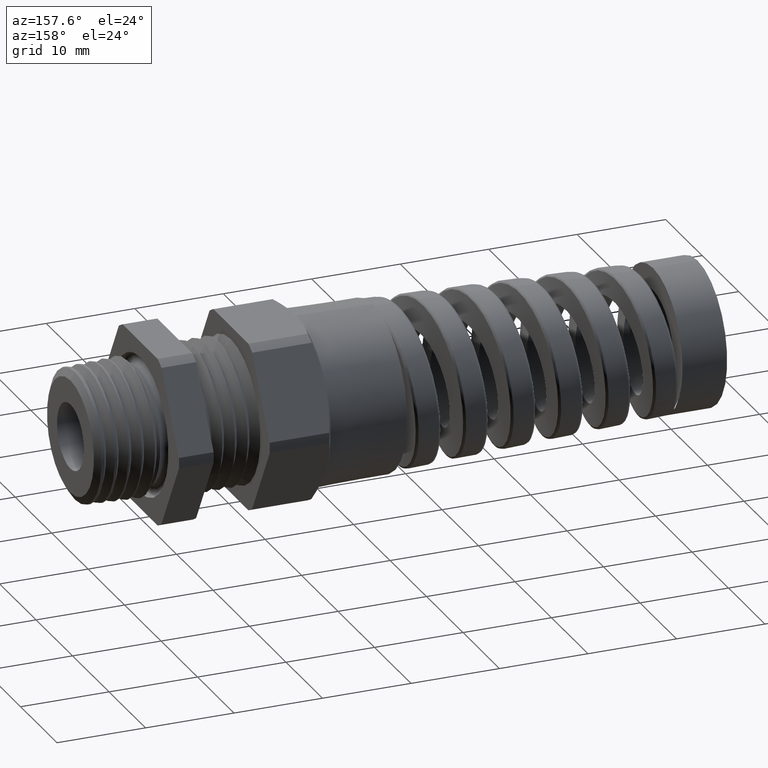
[diagram: clean part render]
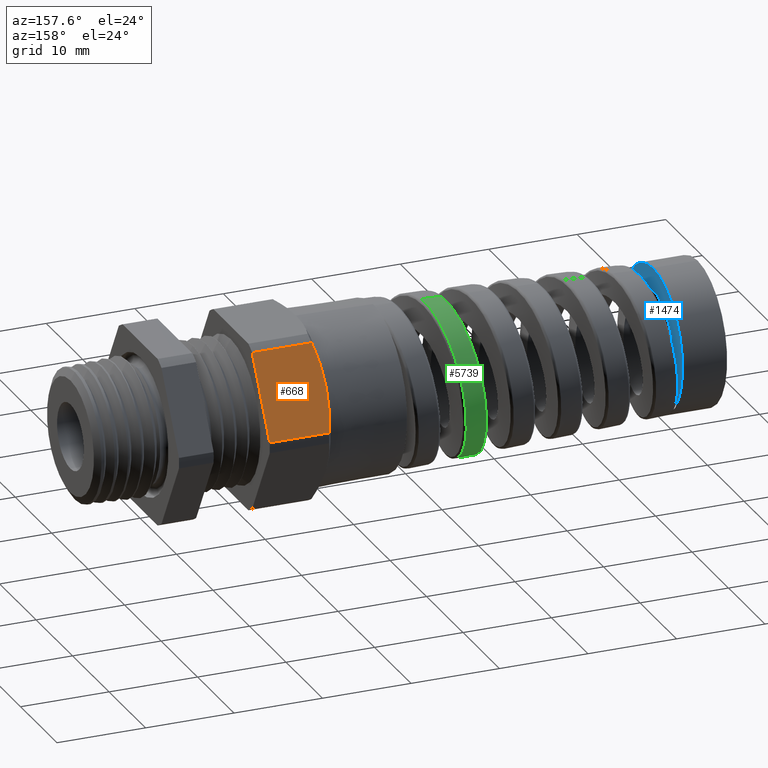
[diagram: same view with three faces highlighted in distinct colors, each labeled with its STEP entity id]
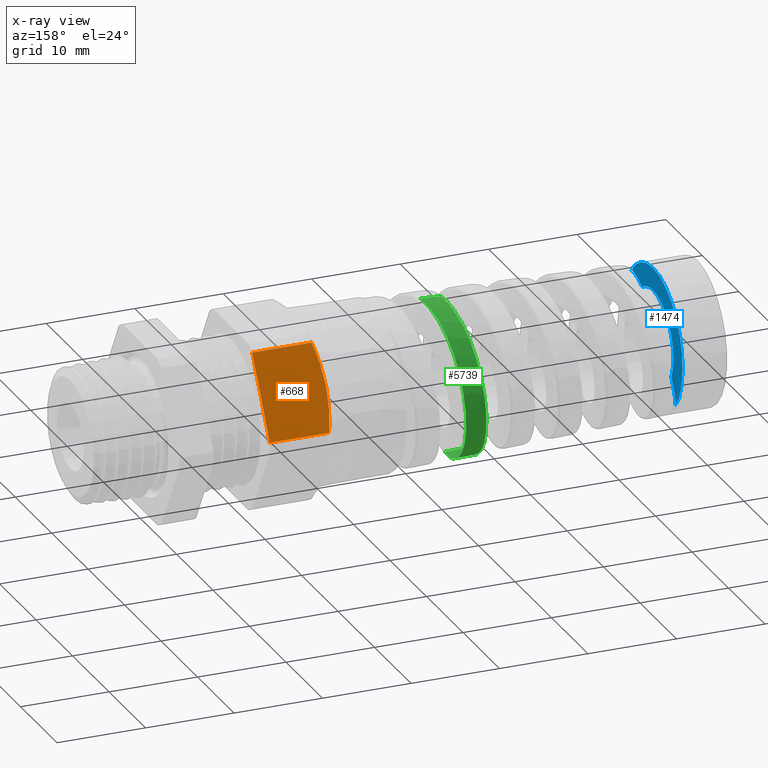
[diagram: x-ray of the same camera — body ghosted, the three highlighted faces saturated]
A machine part, auxiliary view with three faces highlighted in distinct colors.
The next image is the same camera in x-ray (body ghosted, the three faces saturated) — at least one of them is partly hidden behind the body in this view.
Their STEP definitions:

[orange] entity #668 — the highlighted planar face has unit normal (0, 0.866, 0.5).
#615 = VERTEX_POINT ( 'NONE', #7004 ) ;
#617 = EDGE_CURVE ( 'NONE', #618, #615, #7003, .T. ) ;
#618 = VERTEX_POINT ( 'NONE', #6994 ) ;
#621 = VERTEX_POINT ( 'NONE', #7050 ) ;
#628 = VERTEX_POINT ( 'NONE', #7034 ) ;
#653 = EDGE_CURVE ( 'NONE', #628, #621, #7100, .T. ) ;
#664 = ORIENTED_EDGE ( 'NONE', *, *, #617, .F. ) ;
#665 = EDGE_LOOP ( 'NONE', ( #664, #690, #687, #688, #686 ) ) ;
#668 = ADVANCED_FACE ( 'NONE', ( #7122 ), #7121, .T. ) ;
#680 = EDGE_CURVE ( 'NONE', #685, #628, #7182, .T. ) ;
#682 = EDGE_CURVE ( 'NONE', #618, #685, #7181, .T. ) ;
#684 = EDGE_CURVE ( 'NONE', #621, #615, #7227, .T. ) ;
#685 = VERTEX_POINT ( 'NONE', #7217 ) ;
#686 = ORIENTED_EDGE ( 'NONE', *, *, #684, .T. ) ;
#687 = ORIENTED_EDGE ( 'NONE', *, *, #680, .T. ) ;
#688 = ORIENTED_EDGE ( 'NONE', *, *, #653, .T. ) ;
#690 = ORIENTED_EDGE ( 'NONE', *, *, #682, .T. ) ;
#6994 = CARTESIAN_POINT ( 'NONE',  ( -0.6677692378864669200, 0.4193309280160532100, 0.02369752749118837800 ) ) ;
#6995 = DIRECTION ( 'NONE',  ( 1.000000000000000000, 0.0000000000000000000, 0.0000000000000000000 ) ) ;
#6996 = VECTOR ( 'NONE', #6995, 39.37007874015748100 ) ;
#6997 = CARTESIAN_POINT ( 'NONE',  ( -1.893568786317334100, 0.4193309280160532100, 0.02369752749118839500 ) ) ;
#7003 = LINE ( 'NONE', #6997, #6996 ) ;
#7004 = CARTESIAN_POINT ( 'NONE',  ( -0.4037500000000000500, 0.4193309280160532100, 0.02369752749118839500 ) ) ;
#7034 = CARTESIAN_POINT ( 'NONE',  ( -0.6677692378864669200, 0.2301881248222758000, 0.3513024725088117500 ) ) ;
#7050 = CARTESIAN_POINT ( 'NONE',  ( -0.4037500000000000500, 0.2301881248222757400, 0.3513024725088116900 ) ) ;
#7097 = DIRECTION ( 'NONE',  ( 1.000000000000000000, 0.0000000000000000000, 0.0000000000000000000 ) ) ;
#7098 = VECTOR ( 'NONE', #7097, 39.37007874015748100 ) ;
#7099 = CARTESIAN_POINT ( 'NONE',  ( -1.893568786317334100, 0.2301881248222757400, 0.3513024725088116900 ) ) ;
#7100 = LINE ( 'NONE', #7099, #7098 ) ;
#7119 = AXIS2_PLACEMENT_3D ( 'NONE', #7172, #7171, #7170 ) ;
#7121 = PLANE ( 'NONE',  #7119 ) ;
#7122 = FACE_OUTER_BOUND ( 'NONE', #665, .T. ) ;
#7170 = DIRECTION ( 'NONE',  ( 0.0000000000000000000, -0.5000000000000001100, 0.8660254037844386000 ) ) ;
#7171 = DIRECTION ( 'NONE',  ( 0.0000000000000000000, 0.8660254037844386000, 0.5000000000000001100 ) ) ;
#7172 = CARTESIAN_POINT ( 'NONE',  ( -1.893568786317334100, 0.4193309280160532100, 0.02369752749118835000 ) ) ;
#7173 = CARTESIAN_POINT ( 'NONE',  ( -0.6677692378864669200, 0.2301881248222758000, 0.3513024725088117500 ) ) ;
#7174 = CARTESIAN_POINT ( 'NONE',  ( -0.6758195584202750800, 0.2456692767811520200, 0.3244883307563434800 ) ) ;
#7175 = CARTESIAN_POINT ( 'NONE',  ( -0.6823587424992737500, 0.2612741988924826000, 0.2974598128113639100 ) ) ;
#7176 = CARTESIAN_POINT ( 'NONE',  ( -0.6890958449295796500, 0.2849331685521922500, 0.2564812753060161700 ) ) ;
#7177 = CARTESIAN_POINT ( 'NONE',  ( -0.6908293426401992400, 0.2928614439435943700, 0.2427490995117095900 ) ) ;
#7178 = CARTESIAN_POINT ( 'NONE',  ( -0.6931602879428224700, 0.3088110433031369100, 0.2151235830606143000 ) ) ;
#7179 = CARTESIAN_POINT ( 'NONE',  ( -0.6937500000000000900, 0.3168132821342497500, 0.2012632988308260300 ) ) ;
#7180 = CARTESIAN_POINT ( 'NONE',  ( -0.6937499999999999800, 0.3247595264191644500, 0.1875000000000000300 ) ) ;
#7181 = B_SPLINE_CURVE_WITH_KNOTS ( 'NONE', 3,
 ( #7226, #7225, #7224, #7223, #7222, #7221 ),
 .UNSPECIFIED., .F., .F.,
 ( 4, 2, 4 ),
 ( 2.361310733801482100E-007, 0.002424044080837155700, 0.004847852030600931200 ),
 .UNSPECIFIED. ) ;
#7182 = B_SPLINE_CURVE_WITH_KNOTS ( 'NONE', 3,
 ( #7180, #7179, #7178, #7177, #7176, #7175, #7174, #7173 ),
 .UNSPECIFIED., .F., .F.,
 ( 4, 2, 2, 4 ),
 ( 0.004847852030600931200, 0.006051560003637239000, 0.007255267976673545100, 0.009662683922746159000 ),
 .UNSPECIFIED. ) ;
#7217 = CARTESIAN_POINT ( 'NONE',  ( -0.6937499999999999800, 0.3247595264191644500, 0.1875000000000000300 ) ) ;
#7218 = DIRECTION ( 'NONE',  ( 0.0000000000000000000, 0.5000000000000002200, -0.8660254037844386000 ) ) ;
#7219 = VECTOR ( 'NONE', #7218, 39.37007874015747400 ) ;
#7220 = CARTESIAN_POINT ( 'NONE',  ( -0.4037499999999999400, 0.4042595264191644600, 0.04980196079827427900 ) ) ;
#7221 = CARTESIAN_POINT ( 'NONE',  ( -0.6937499999999999800, 0.3247595264191644500, 0.1875000000000000300 ) ) ;
#7222 = CARTESIAN_POINT ( 'NONE',  ( -0.6937499999999999800, 0.3407602263397257500, 0.1597859747809245200 ) ) ;
#7223 = CARTESIAN_POINT ( 'NONE',  ( -0.6913537581776820800, 0.3566287773148728000, 0.1323008382494728900 ) ) ;
#7224 = CARTESIAN_POINT ( 'NONE',  ( -0.6823975651380708200, 0.3881362572794259700, 0.07772828213240884400 ) ) ;
#7225 = CARTESIAN_POINT ( 'NONE',  ( -0.6758577677325460200, 0.4037762977196653900, 0.05063893745748197800 ) ) ;
#7226 = CARTESIAN_POINT ( 'NONE',  ( -0.6677692378864669200, 0.4193309280160532100, 0.02369752749118837800 ) ) ;
#7227 = LINE ( 'NONE', #7220, #7219 ) ;

[blue] entity #1474 — the highlighted planar face has unit normal (-1, 0, 0).
#849 = VERTEX_POINT ( 'NONE', #7493 ) ;
#1378 = VERTEX_POINT ( 'NONE', #2552 ) ;
#1380 = EDGE_CURVE ( 'NONE', #1430, #1378, #8619, .T. ) ;
#1426 = EDGE_CURVE ( 'NONE', #1427, #9633, #2970, .T. ) ;
#1427 = VERTEX_POINT ( 'NONE', #2969 ) ;
#1430 = VERTEX_POINT ( 'NONE', #3383 ) ;
#1454 = ORIENTED_EDGE ( 'NONE', *, *, #1473, .T. ) ;
#1455 = ORIENTED_EDGE ( 'NONE', *, *, #1380, .T. ) ;
#1456 = ORIENTED_EDGE ( 'NONE', *, *, #1457, .T. ) ;
#1457 = EDGE_CURVE ( 'NONE', #1378, #9945, #3681, .T. ) ;
#1458 = ORIENTED_EDGE ( 'NONE', *, *, #9941, .F. ) ;
#1459 = ORIENTED_EDGE ( 'NONE', *, *, #1460, .F. ) ;
#1460 = EDGE_CURVE ( 'NONE', #849, #9937, #3752, .T. ) ;
#1461 = ORIENTED_EDGE ( 'NONE', *, *, #1462, .T. ) ;
#1462 = EDGE_CURVE ( 'NONE', #849, #1427, #3731, .T. ) ;
#1463 = ORIENTED_EDGE ( 'NONE', *, *, #1426, .T. ) ;
#1473 = EDGE_CURVE ( 'NONE', #9658, #1430, #3772, .T. ) ;
#1474 = ADVANCED_FACE ( 'NONE', ( #3767 ), #3766, .F. ) ;
#1475 = EDGE_LOOP ( 'NONE', ( #1476, #1454, #1455, #1456, #1458, #1459, #1461, #1463 ) ) ;
#1476 = ORIENTED_EDGE ( 'NONE', *, *, #9654, .T. ) ;
#2552 = CARTESIAN_POINT ( 'NONE',  ( -2.281599999999999200, 0.2441299485195356500, -0.1922243330959713900 ) ) ;
#2627 = CARTESIAN_POINT ( 'NONE',  ( -2.281599999999999200, 0.2441299485195356500, -0.1922243330959713900 ) ) ;
#2628 = CARTESIAN_POINT ( 'NONE',  ( -2.281600000000000500, 0.2419666258954241700, -0.1833425962632613300 ) ) ;
#2629 = CARTESIAN_POINT ( 'NONE',  ( -2.281599999999999200, 0.2393865534189610300, -0.1744884180165223700 ) ) ;
#2630 = CARTESIAN_POINT ( 'NONE',  ( -2.281599999999999600, 0.2334592406066757500, -0.1571968468716702900 ) ) ;
#2631 = CARTESIAN_POINT ( 'NONE',  ( -2.281600000000000500, 0.2301065503176067100, -0.1487262331405844200 ) ) ;
#2632 = CARTESIAN_POINT ( 'NONE',  ( -2.281600000000001000, 0.2225944301797976000, -0.1321482595242904300 ) ) ;
#2633 = CARTESIAN_POINT ( 'NONE',  ( -2.281600000000000100, 0.2184352372086744400, -0.1240407929792506500 ) ) ;
#2634 = CARTESIAN_POINT ( 'NONE',  ( -2.281600000000000500, 0.2092542478437517900, -0.1082142677799189500 ) ) ;
#2635 = CARTESIAN_POINT ( 'NONE',  ( -2.281599999999999200, 0.2042124222677342300, -0.1004754912468228100 ) ) ;
#2636 = CARTESIAN_POINT ( 'NONE',  ( -2.281600000000000100, 0.1988147203345156400, -0.09310178133888366600 ) ) ;
#2961 = CARTESIAN_POINT ( 'NONE',  ( -2.281600000000000100, -0.1181244775444317000, 0.1850455147119757500 ) ) ;
#2962 = CARTESIAN_POINT ( 'NONE',  ( -2.281600000000000500, -0.1341672906492102600, 0.1938133427084262600 ) ) ;
#2963 = CARTESIAN_POINT ( 'NONE',  ( -2.281600000000000500, -0.1508556247714476800, 0.2007232448722528500 ) ) ;
#2964 = CARTESIAN_POINT ( 'NONE',  ( -2.281599999999999600, -0.1767382896710739100, 0.2086411737147749200 ) ) ;
#2965 = CARTESIAN_POINT ( 'NONE',  ( -2.281599999999997400, -0.1855086616308729600, 0.2108694302819826800 ) ) ;
#2966 = CARTESIAN_POINT ( 'NONE',  ( -2.281599999999999200, -0.2033283397267128500, 0.2145231205839472600 ) ) ;
#2967 = CARTESIAN_POINT ( 'NONE',  ( -2.281599999999999600, -0.2124156819338610400, 0.2159497936519409700 ) ) ;
#2968 = CARTESIAN_POINT ( 'NONE',  ( -2.281600000000000100, -0.2214689714114223000, 0.2169614034571178700 ) ) ;
#2969 = CARTESIAN_POINT ( 'NONE',  ( -2.281600000000000100, -0.2214689714114223000, 0.2169614034571178700 ) ) ;
#2970 = B_SPLINE_CURVE_WITH_KNOTS ( 'NONE', 3,
 ( #2968, #2967, #2966, #2965, #2964, #2963, #2962, #2961 ),
 .UNSPECIFIED., .F., .F.,
 ( 4, 2, 2, 4 ),
 ( 0.002234325109522063000, 0.002923861160631695700, 0.003613397211741328400, 0.004992469313960594700 ),
 .UNSPECIFIED. ) ;
#3383 = CARTESIAN_POINT ( 'NONE',  ( -2.281600000000000100, 0.1988147203345156400, -0.09310178133888366600 ) ) ;
#3681 = B_SPLINE_CURVE_WITH_KNOTS ( 'NONE', 3,
 ( #3748, #3747, #3746, #3745, #3744, #3743, #3742, #3741, #3740, #3739, #3738, #3737, #3736, #3735 ),
 .UNSPECIFIED., .F., .F.,
 ( 4, 2, 2, 2, 2, 2, 4 ),
 ( 6.071532165918824800E-018, 7.312836019618773200E-005, 0.0001462567203923693900, 0.0002925134407847317400, 0.0005850268815694577300, 0.001170053763138911100, 0.002340107526277816200 ),
 .UNSPECIFIED. ) ;
#3717 = CARTESIAN_POINT ( 'NONE',  ( -2.281599999999999600, -0.2262798397043114300, 0.2153916821769448500 ) ) ;
#3718 = CARTESIAN_POINT ( 'NONE',  ( -2.281599999999999600, -0.2289097494163955800, 0.2138624895927517000 ) ) ;
#3719 = CARTESIAN_POINT ( 'NONE',  ( -2.281599999999999600, -0.2305907136268856300, 0.2127039200760972600 ) ) ;
#3720 = CARTESIAN_POINT ( 'NONE',  ( -2.281600000000000500, -0.2354984607448709600, 0.2090663187104356600 ) ) ;
#3721 = CARTESIAN_POINT ( 'NONE',  ( -2.281600000000000500, -0.2385942800280715400, 0.2064080430230576800 ) ) ;
#3722 = CARTESIAN_POINT ( 'NONE',  ( -2.281600000000000500, -0.2475443822845982400, 0.1981003730387410100 ) ) ;
#3723 = CARTESIAN_POINT ( 'NONE',  ( -2.281600000000000500, -0.2530595300679645600, 0.1920895477628009600 ) ) ;
#3724 = CARTESIAN_POINT ( 'NONE',  ( -2.281600000000000500, -0.2685400010202535500, 0.1731864992029805400 ) ) ;
#3725 = CARTESIAN_POINT ( 'NONE',  ( -2.281599999999999600, -0.2773893389573687800, 0.1594447315672110900 ) ) ;
#3726 = CARTESIAN_POINT ( 'NONE',  ( -2.281600000000000100, -0.2847783007351376600, 0.1449254303347846100 ) ) ;
#3731 = B_SPLINE_CURVE_WITH_KNOTS ( 'NONE', 3,
 ( #3726, #3725, #3724, #3723, #3722, #3721, #3720, #3719, #3718, #3717, #3782, #3781, #3780, #3779 ),
 .UNSPECIFIED., .F., .F.,
 ( 4, 2, 2, 2, 2, 2, 4 ),
 ( 0.0000000000000000000, 0.001240266727936232000, 0.001860400091904346900, 0.002170466773888402800, 0.002325500114880431000, 0.002403016785376445300, 0.002480533455872459200 ),
 .UNSPECIFIED. ) ;
#3734 = DIRECTION ( 'NONE',  ( 0.0000000000000000000, 0.0000000000000000000, 1.000000000000000000 ) ) ;
#3735 = CARTESIAN_POINT ( 'NONE',  ( -2.281600000000000100, 0.1857105169849607700, -0.2600262771500150300 ) ) ;
#3736 = CARTESIAN_POINT ( 'NONE',  ( -2.281600000000000100, 0.1981182780986522600, -0.2511646660993745500 ) ) ;
#3737 = CARTESIAN_POINT ( 'NONE',  ( -2.281600000000000100, 0.2095215219280159300, -0.2412621348230232800 ) ) ;
#3738 = CARTESIAN_POINT ( 'NONE',  ( -2.281599999999999600, 0.2249346535386852500, -0.2246552966184754400 ) ) ;
#3739 = CARTESIAN_POINT ( 'NONE',  ( -2.281600000000000500, 0.2298123289435406400, -0.2188083377273261400 ) ) ;
#3740 = CARTESIAN_POINT ( 'NONE',  ( -2.281600000000000100, 0.2364350793627591800, -0.2094571715096813800 ) ) ;
#3741 = CARTESIAN_POINT ( 'NONE',  ( -2.281600000000000100, 0.2385190116649745500, -0.2062647450946019100 ) ) ;
#3742 = CARTESIAN_POINT ( 'NONE',  ( -2.281600000000000500, 0.2412957542047138300, -0.2012632790717821800 ) ) ;
#3743 = CARTESIAN_POINT ( 'NONE',  ( -2.281600000000000500, 0.2421690969169530700, -0.1995566887356888300 ) ) ;
#3744 = CARTESIAN_POINT ( 'NONE',  ( -2.281600000000000500, 0.2432756046296478400, -0.1968976138923709500 ) ) ;
#3745 = CARTESIAN_POINT ( 'NONE',  ( -2.281600000000000100, 0.2436097514620449700, -0.1960000762562754700 ) ) ;
#3746 = CARTESIAN_POINT ( 'NONE',  ( -2.281600000000000100, 0.2441150568013555900, -0.1941524742298829900 ) ) ;
#3747 = CARTESIAN_POINT ( 'NONE',  ( -2.281599999999999200, 0.2443632327753037500, -0.1931821048789948700 ) ) ;
#3748 = CARTESIAN_POINT ( 'NONE',  ( -2.281599999999999200, 0.2441299485195356500, -0.1922243330959713900 ) ) ;
#3749 = DIRECTION ( 'NONE',  ( -1.000000000000000000, 0.0000000000000000000, 0.0000000000000000000 ) ) ;
#3750 = CARTESIAN_POINT ( 'NONE',  ( -2.281600000000000100, 0.0000000000000000000, 0.0000000000000000000 ) ) ;
#3751 = AXIS2_PLACEMENT_3D ( 'NONE', #3750, #3749, #3734 ) ;
#3752 = CIRCLE ( 'NONE', #3751, 0.3195341310835432800 ) ;
#3762 = DIRECTION ( 'NONE',  ( 0.0000000000000000000, 0.0000000000000000000, 1.000000000000000000 ) ) ;
#3763 = DIRECTION ( 'NONE',  ( -1.000000000000000000, 0.0000000000000000000, 0.0000000000000000000 ) ) ;
#3764 = CARTESIAN_POINT ( 'NONE',  ( -2.281600000000000100, 0.0000000000000000000, 0.0000000000000000000 ) ) ;
#3765 = AXIS2_PLACEMENT_3D ( 'NONE', #3764, #3763, #3762 ) ;
#3766 = PLANE ( 'NONE',  #3765 ) ;
#3767 = FACE_OUTER_BOUND ( 'NONE', #1475, .T. ) ;
#3768 = DIRECTION ( 'NONE',  ( 0.0000000000000000000, 0.0000000000000000000, 1.000000000000000000 ) ) ;
#3769 = DIRECTION ( 'NONE',  ( -1.000000000000000000, 0.0000000000000000000, 0.0000000000000000000 ) ) ;
#3770 = CARTESIAN_POINT ( 'NONE',  ( -2.281600000000000100, 0.0000000000000000000, 0.0000000000000000000 ) ) ;
#3771 = AXIS2_PLACEMENT_3D ( 'NONE', #3770, #3769, #3768 ) ;
#3772 = CIRCLE ( 'NONE', #3771, 0.2195341310825380300 ) ;
#3779 = CARTESIAN_POINT ( 'NONE',  ( -2.281600000000000100, -0.2214689714114223000, 0.2169614034571178700 ) ) ;
#3780 = CARTESIAN_POINT ( 'NONE',  ( -2.281600000000000500, -0.2225034143022011100, 0.2170769915617299700 ) ) ;
#3781 = CARTESIAN_POINT ( 'NONE',  ( -2.281600000000000100, -0.2235089162351318300, 0.2166667355570293700 ) ) ;
#3782 = CARTESIAN_POINT ( 'NONE',  ( -2.281600000000000500, -0.2253851452180698800, 0.2158688685236833100 ) ) ;
#4860 = CARTESIAN_POINT ( 'NONE',  ( -2.281600000000000100, -0.1181244775444317000, 0.1850455147119757500 ) ) ;
#4974 = DIRECTION ( 'NONE',  ( 0.0000000000000000000, 0.0000000000000000000, 1.000000000000000000 ) ) ;
#4975 = DIRECTION ( 'NONE',  ( -1.000000000000000000, 0.0000000000000000000, 0.0000000000000000000 ) ) ;
#4976 = CARTESIAN_POINT ( 'NONE',  ( -2.281600000000000100, 0.0000000000000000000, 0.0000000000000000000 ) ) ;
#4977 = AXIS2_PLACEMENT_3D ( 'NONE', #4976, #4975, #4974 ) ;
#4978 = CIRCLE ( 'NONE', #4977, 0.2195341310825380300 ) ;
#5008 = CARTESIAN_POINT ( 'NONE',  ( -2.281600000000000100, 2.688517709344438000E-017, 0.2195341310825380300 ) ) ;
#5246 = CARTESIAN_POINT ( 'NONE',  ( -2.281600000000000100, 3.913164508497920300E-017, 0.3195341310835432800 ) ) ;
#5350 = CARTESIAN_POINT ( 'NONE',  ( -2.281600000000000100, 0.1857105169849607700, -0.2600262771500150300 ) ) ;
#5351 = DIRECTION ( 'NONE',  ( 0.0000000000000000000, 0.0000000000000000000, 1.000000000000000000 ) ) ;
#5352 = DIRECTION ( 'NONE',  ( -1.000000000000000000, 0.0000000000000000000, 0.0000000000000000000 ) ) ;
#5353 = CARTESIAN_POINT ( 'NONE',  ( -2.281600000000000100, 0.0000000000000000000, 0.0000000000000000000 ) ) ;
#5354 = AXIS2_PLACEMENT_3D ( 'NONE', #5353, #5352, #5351 ) ;
#5355 = CIRCLE ( 'NONE', #5354, 0.3195341310835432800 ) ;
#7493 = CARTESIAN_POINT ( 'NONE',  ( -2.281600000000000100, -0.2847783007351376600, 0.1449254303347846100 ) ) ;
#8619 = B_SPLINE_CURVE_WITH_KNOTS ( 'NONE', 3,
 ( #2636, #2635, #2634, #2633, #2632, #2631, #2630, #2629, #2628, #2627 ),
 .UNSPECIFIED., .F., .F.,
 ( 4, 2, 2, 2, 4 ),
 ( 0.005803431168873382700, 0.006498037247146044900, 0.007192643325418706200, 0.007887249403691367500, 0.008581855481964030500 ),
 .UNSPECIFIED. ) ;
#9633 = VERTEX_POINT ( 'NONE', #4860 ) ;
#9654 = EDGE_CURVE ( 'NONE', #9633, #9658, #4978, .T. ) ;
#9658 = VERTEX_POINT ( 'NONE', #5008 ) ;
#9937 = VERTEX_POINT ( 'NONE', #5246 ) ;
#9941 = EDGE_CURVE ( 'NONE', #9937, #9945, #5355, .T. ) ;
#9945 = VERTEX_POINT ( 'NONE', #5350 ) ;

[green] entity #5739 — the highlighted conical surface has half-angle 2.001 deg.
#905 = VERTEX_POINT ( 'NONE', #7953 ) ;
#906 = ORIENTED_EDGE ( 'NONE', *, *, #1064, .T. ) ;
#907 = VERTEX_POINT ( 'NONE', #7979 ) ;
#913 = VERTEX_POINT ( 'NONE', #8002 ) ;
#915 = ORIENTED_EDGE ( 'NONE', *, *, #10378, .F. ) ;
#1064 = EDGE_CURVE ( 'NONE', #913, #1067, #8526, .T. ) ;
#1065 = ORIENTED_EDGE ( 'NONE', *, *, #1066, .T. ) ;
#1066 = EDGE_CURVE ( 'NONE', #1067, #907, #8521, .T. ) ;
#1067 = VERTEX_POINT ( 'NONE', #8522 ) ;
#3968 = CARTESIAN_POINT ( 'NONE',  ( -1.427952799269247800, 0.1753075302559802300, -0.3024009436363790900 ) ) ;
#3970 = CARTESIAN_POINT ( 'NONE',  ( -1.430186546201634500, 0.1550725156980358200, -0.3131725773269730100 ) ) ;
#3971 = CARTESIAN_POINT ( 'NONE',  ( -1.432410922337046700, 0.1343924510937774000, -0.3229060425611256500 ) ) ;
#3992 = DIRECTION ( 'NONE',  ( 0.0000000000000000000, 0.0000000000000000000, -1.000000000000000000 ) ) ;
#3993 = DIRECTION ( 'NONE',  ( 1.000000000000000000, 0.0000000000000000000, 0.0000000000000000000 ) ) ;
#3994 = AXIS2_PLACEMENT_3D ( 'NONE', #4002, #3993, #3992 ) ;
#3996 = CONICAL_SURFACE ( 'NONE', #3994, 0.3749999999999999400, 0.03491723117042448000 ) ;
#3997 = FACE_OUTER_BOUND ( 'NONE', #5731, .T. ) ;
#4002 = CARTESIAN_POINT ( 'NONE',  ( -0.6937499999999999800, 0.0000000000000000000, 0.0000000000000000000 ) ) ;
#4240 = CARTESIAN_POINT ( 'NONE',  ( -1.434640576719230500, 0.1128333771112119700, -0.3305831149448181800 ) ) ;
#4241 = CARTESIAN_POINT ( 'NONE',  ( -1.436884539128643800, 0.09082764821133551500, -0.3372123663024770800 ) ) ;
#4242 = CARTESIAN_POINT ( 'NONE',  ( -1.438019668195167600, 0.07954069249953356300, -0.3400116990029198300 ) ) ;
#4243 = CARTESIAN_POINT ( 'NONE',  ( -1.441398454263843400, 0.04564378809705809500, -0.3466506028245575100 ) ) ;
#4244 = CARTESIAN_POINT ( 'NONE',  ( -1.443627705565472500, 0.02289460417613252100, -0.3488057004627915200 ) ) ;
#4245 = CARTESIAN_POINT ( 'NONE',  ( -1.445867873573156900, -1.037343230577371000E-012, -0.3487274481938913400 ) ) ;
#4248 = B_SPLINE_CURVE_WITH_KNOTS ( 'NONE', 3,
 ( #4245, #4244, #4243, #4242, #4241, #4240, #3971, #3970, #3968, #4312, #4311, #4310, #4309, #4308, #4307, #4306, #4305, #4304, #4303, #4302, #4301, #4300, #4299, #4298, #4297, #4296, #4295, #4294, #4293, #4292, #4291, #4290, #4289, #4288, #4287, #4286, #4285, #4284, #4283, #4282, #4281, #4280, #4279, #4278, #4277, #4276 ),
 .UNSPECIFIED., .F., .F.,
 ( 4, 2, 2, 1, 2, 2, 2, 2, 2, 2, 2, 2, 2, 2, 1, 2, 2, 2, 2, 2, 2, 2, 2, 4 ),
 ( 0.2087365588277312100, 0.2104912321302594400, 0.2113685687815235700, 0.2122459054327876800, 0.2131232420840518100, 0.2140005787353159200, 0.2157552520378441800, 0.2166325886891082900, 0.2175099253403724200, 0.2192645986429006800, 0.2201419352941647900, 0.2210192719454289200, 0.2227739452479571600, 0.2236512818992212900, 0.2245286185504854200, 0.2254059552017495200, 0.2262832918530136600, 0.2280379651555419200, 0.2297926384580701600, 0.2315473117605984000, 0.2324246484118625300, 0.2333019850631266600, 0.2350566583656549000, 0.2368113316681831600 ),
 .UNSPECIFIED. ) ;
#4276 = CARTESIAN_POINT ( 'NONE',  ( -1.338755379353400400, 4.841643507866897700E-015, 0.3524690406388372200 ) ) ;
#4277 = CARTESIAN_POINT ( 'NONE',  ( -1.340963029848006400, 0.02284820148542882800, 0.3523919242531913800 ) ) ;
#4278 = CARTESIAN_POINT ( 'NONE',  ( -1.343163968944657900, 0.04564379797175238000, 0.3501130547494258900 ) ) ;
#4279 = CARTESIAN_POINT ( 'NONE',  ( -1.347643250511709700, 0.09106278037096481000, 0.3409689869486784400 ) ) ;
#4280 = CARTESIAN_POINT ( 'NONE',  ( -1.349850101403104400, 0.1129520641382263800, 0.3342533170496168000 ) ) ;
#4281 = CARTESIAN_POINT ( 'NONE',  ( -1.353175225984483800, 0.1445987794864880800, 0.3210939252536905200 ) ) ;
#4282 = CARTESIAN_POINT ( 'NONE',  ( -1.354285859078055100, 0.1549484011670983200, 0.3161894051260309400 ) ) ;
#4283 = CARTESIAN_POINT ( 'NONE',  ( -1.356520402773468500, 0.1752392874876838300, 0.3053211511411295700 ) ) ;
#4284 = CARTESIAN_POINT ( 'NONE',  ( -1.357647828564794400, 0.1852092280008622000, 0.2993315014798852400 ) ) ;
#4285 = CARTESIAN_POINT ( 'NONE',  ( -1.360990044246292600, 0.2138647433253864100, 0.2801393103557832100 ) ) ;
#4286 = CARTESIAN_POINT ( 'NONE',  ( -1.363189817711353900, 0.2315131842137499700, 0.2656316003193599500 ) ) ;
#4287 = CARTESIAN_POINT ( 'NONE',  ( -1.367627145424082500, 0.2639202095242230700, 0.2332287422908964600 ) ) ;
#4288 = CARTESIAN_POINT ( 'NONE',  ( -1.369880106041303700, 0.2787341392682224900, 0.2151747473918217700 ) ) ;
#4289 = CARTESIAN_POINT ( 'NONE',  ( -1.374325843323998900, 0.3041601757416702600, 0.1771168189962968000 ) ) ;
#4290 = CARTESIAN_POINT ( 'NONE',  ( -1.376540178110062100, 0.3149549869479902300, 0.1569715429477359900 ) ) ;
#4291 = CARTESIAN_POINT ( 'NONE',  ( -1.379901729815962400, 0.3282058132304297400, 0.1250478709419831400 ) ) ;
#4292 = CARTESIAN_POINT ( 'NONE',  ( -1.381029361264392500, 0.3321255839305226600, 0.1141058349210114900 ) ) ;
#4293 = CARTESIAN_POINT ( 'NONE',  ( -1.383259118370946000, 0.3388003550446558900, 0.09212596781645042400 ) ) ;
#4294 = CARTESIAN_POINT ( 'NONE',  ( -1.385476040251425500, 0.3443641056963353500, 0.06993343052915083900 ) ) ;
#4295 = CARTESIAN_POINT ( 'NONE',  ( -1.387691187875500700, 0.3477415034979379800, 0.04732471593303718600 ) ) ;
#4296 = CARTESIAN_POINT ( 'NONE',  ( -1.389917299846708200, 0.3500123797885589800, 0.02450655020876235000 ) ) ;
#4297 = CARTESIAN_POINT ( 'NONE',  ( -1.391040840097799400, 0.3505940851262588900, 0.01294114197806938900 ) ) ;
#4298 = CARTESIAN_POINT ( 'NONE',  ( -1.394410418468681900, 0.3506137642425966600, -0.02171240827728675500 ) ) ;
#4299 = CARTESIAN_POINT ( 'NONE',  ( -1.396628748203729400, 0.3483650166466675800, -0.04447422825568570600 ) ) ;
#4300 = CARTESIAN_POINT ( 'NONE',  ( -1.399972738567801100, 0.3417018222034162200, -0.07811593172769386300 ) ) ;
#4301 = CARTESIAN_POINT ( 'NONE',  ( -1.401089920468371300, 0.3389284795755331800, -0.08924575444490949500 ) ) ;
#4302 = CARTESIAN_POINT ( 'NONE',  ( -1.403336963658902600, 0.3322462473538083100, -0.1113317823279000000 ) ) ;
#4303 = CARTESIAN_POINT ( 'NONE',  ( -1.404464241645884300, 0.3283387786302829900, -0.1222576730787788800 ) ) ;
#4304 = CARTESIAN_POINT ( 'NONE',  ( -1.407811575524444000, 0.3151694777539246200, -0.1540602364550975000 ) ) ;
#4305 = CARTESIAN_POINT ( 'NONE',  ( -1.410020797330140900, 0.3044074539773479200, -0.1742087888049383100 ) ) ;
#4306 = CARTESIAN_POINT ( 'NONE',  ( -1.413372580834595600, 0.2852895026593782500, -0.2028433398379806100 ) ) ;
#4307 = CARTESIAN_POINT ( 'NONE',  ( -1.414502377359936300, 0.2783756933132974800, -0.2121701521523315600 ) ) ;
#4308 = CARTESIAN_POINT ( 'NONE',  ( -1.416751926986549200, 0.2637360608614815500, -0.2299946049014179900 ) ) ;
#4309 = CARTESIAN_POINT ( 'NONE',  ( -1.417870065579063700, 0.2560271443911464900, -0.2384840777200999400 ) ) ;
#4310 = CARTESIAN_POINT ( 'NONE',  ( -1.421219764648210500, 0.2317645782649858400, -0.2627163171880268500 ) ) ;
#4311 = CARTESIAN_POINT ( 'NONE',  ( -1.423445802001076500, 0.2140860027819749500, -0.2772348815830065200 ) ) ;
#4312 = CARTESIAN_POINT ( 'NONE',  ( -1.426826888970375700, 0.1852396159182340100, -0.2964709550224988700 ) ) ;
#5504 = DIRECTION ( 'NONE',  ( 0.9993904554178625300, 0.0000000000000000000, -0.03491013634572582400 ) ) ;
#5505 = VECTOR ( 'NONE', #5504, 39.37007874015748900 ) ;
#5506 = CARTESIAN_POINT ( 'NONE',  ( -0.6937499999999999800, 0.0000000000000000000, -0.3749999999999999400 ) ) ;
#5507 = LINE ( 'NONE', #5506, #5505 ) ;
#5731 = EDGE_LOOP ( 'NONE', ( #5849, #906, #1065, #915 ) ) ;
#5739 = ADVANCED_FACE ( 'NONE', ( #3997 ), #3996, .T. ) ;
#5849 = ORIENTED_EDGE ( 'NONE', *, *, #5852, .T. ) ;
#5852 = EDGE_CURVE ( 'NONE', #905, #913, #4248, .T. ) ;
#7953 = CARTESIAN_POINT ( 'NONE',  ( -1.445867873573156900, -1.037343230577371000E-012, -0.3487274481938913400 ) ) ;
#7979 = CARTESIAN_POINT ( 'NONE',  ( -1.354979672988943800, -1.726662237330406300E-017, -0.3519023028839793300 ) ) ;
#8002 = CARTESIAN_POINT ( 'NONE',  ( -1.338755379353400400, 4.841643507866897700E-015, 0.3524690406388372200 ) ) ;
#8502 = CARTESIAN_POINT ( 'NONE',  ( -1.290146610591058600, 0.3356971877542238000, 0.1152390859030347200 ) ) ;
#8503 = CARTESIAN_POINT ( 'NONE',  ( -1.286790217820533700, 0.3223770642001418400, 0.1473938859013392600 ) ) ;
#8504 = CARTESIAN_POINT ( 'NONE',  ( -1.285659515626340600, 0.3173573344109205100, 0.1580012039424784600 ) ) ;
#8505 = CARTESIAN_POINT ( 'NONE',  ( -1.283421582062840500, 0.3064046551419080100, 0.1784703043481690500 ) ) ;
#8506 = CARTESIAN_POINT ( 'NONE',  ( -1.282310479000002400, 0.3004592581535555100, 0.1883754432288970400 ) ) ;
#8507 = CARTESIAN_POINT ( 'NONE',  ( -1.278986030336871600, 0.2812466872887494100, 0.2171225710335416800 ) ) ;
#8508 = CARTESIAN_POINT ( 'NONE',  ( -1.276778480226172400, 0.2666051239597632100, 0.2350170124835731500 ) ) ;
#8509 = CARTESIAN_POINT ( 'NONE',  ( -1.272293009766999300, 0.2335734276785519600, 0.2680781557217398200 ) ) ;
#8510 = CARTESIAN_POINT ( 'NONE',  ( -1.270085376448078600, 0.2157103370382327800, 0.2827218234739535800 ) ) ;
#8511 = CARTESIAN_POINT ( 'NONE',  ( -1.266759666349678300, 0.1869814734535405500, 0.3019675397814609000 ) ) ;
#8512 = CARTESIAN_POINT ( 'NONE',  ( -1.265648927395336200, 0.1770804436102915200, 0.3079261849744646700 ) ) ;
#8513 = CARTESIAN_POINT ( 'NONE',  ( -1.263413726698431100, 0.1566151078246641200, 0.3189093483541407000 ) ) ;
#8514 = CARTESIAN_POINT ( 'NONE',  ( -1.262285893706182000, 0.1460158893225055600, 0.3239420068197568200 ) ) ;
#8515 = CARTESIAN_POINT ( 'NONE',  ( -1.258942207441580800, 0.1138939740575044000, 0.3373034908735255100 ) ) ;
#8516 = CARTESIAN_POINT ( 'NONE',  ( -1.256744925563326300, 0.09185046910301762600, 0.3440349803793706900 ) ) ;
#8517 = CARTESIAN_POINT ( 'NONE',  ( -1.252316782466357700, 0.04652758436808507300, 0.3531879262475511300 ) ) ;
#8518 = CARTESIAN_POINT ( 'NONE',  ( -1.250071439248013000, 0.02308776978212197200, 0.3555668973613810800 ) ) ;
#8519 = CARTESIAN_POINT ( 'NONE',  ( -1.247857434349479700, -1.115099941763735600E-013, 0.3556442357154265300 ) ) ;
#8521 = B_SPLINE_CURVE_WITH_KNOTS ( 'NONE', 3,
 ( #8519, #8518, #8517, #8516, #8515, #8514, #8513, #8512, #8511, #8510, #8509, #8508, #8507, #8506, #8505, #8504, #8503, #8502, #8575, #8574, #8573, #8572, #8571, #8570, #8569, #8568, #8567, #8566, #8565, #8564, #8563, #8562, #8561, #8560, #8559, #8558, #8557, #8556, #8555, #8554, #8553, #8552, #8551, #8550, #8549 ),
 .UNSPECIFIED., .F., .F.,
 ( 4, 2, 2, 2, 2, 2, 2, 2, 2, 2, 2, 2, 2, 1, 2, 2, 2, 2, 2, 2, 2, 2, 4 ),
 ( 0.05713157829868315700, 0.05890929725610752300, 0.06068701621353188300, 0.06157587569224407000, 0.06246473517095625000, 0.06424245412838061600, 0.06602017308580499000, 0.06690903256451717600, 0.06779789204322936300, 0.06957561100065373600, 0.07135332995807811000, 0.07313104891550248300, 0.07401990839421465600, 0.07490876787292685700, 0.07579762735163903000, 0.07668648683035121600, 0.07846420578777560400, 0.07935306526648777700, 0.08024192474519996300, 0.08201964370262433700, 0.08290850318133652400, 0.08379736266004871000, 0.08557508161747308400 ),
 .UNSPECIFIED. ) ;
#8522 = CARTESIAN_POINT ( 'NONE',  ( -1.247857434349479700, -1.115099941763735600E-013, 0.3556442357154265300 ) ) ;
#8523 = DIRECTION ( 'NONE',  ( 0.9993904554178625300, 4.275258673359081200E-018, 0.03491013634572582400 ) ) ;
#8524 = VECTOR ( 'NONE', #8523, 39.37007874015748900 ) ;
#8525 = CARTESIAN_POINT ( 'NONE',  ( -0.6937499999999999800, 4.592425496802573600E-017, 0.3749999999999999400 ) ) ;
#8526 = LINE ( 'NONE', #8525, #8524 ) ;
#8549 = CARTESIAN_POINT ( 'NONE',  ( -1.354979672988943800, -1.726662237330406300E-017, -0.3519023028839793300 ) ) ;
#8550 = CARTESIAN_POINT ( 'NONE',  ( -1.352716094077343100, 0.02332390801055224700, -0.3519813729291302300 ) ) ;
#8551 = CARTESIAN_POINT ( 'NONE',  ( -1.350484074081974100, 0.04629766019936115700, -0.3497630857973051400 ) ) ;
#8552 = CARTESIAN_POINT ( 'NONE',  ( -1.347133909813364100, 0.08024607905094731400, -0.3431060150282102500 ) ) ;
#8553 = CARTESIAN_POINT ( 'NONE',  ( -1.346016381556294700, 0.09147618503020178700, -0.3403280132147135100 ) ) ;
#8554 = CARTESIAN_POINT ( 'NONE',  ( -1.343767253019346500, 0.1137585760253850300, -0.3336246174342230000 ) ) ;
#8555 = CARTESIAN_POINT ( 'NONE',  ( -1.342637001567990700, 0.1247947930488540200, -0.3296956175980578800 ) ) ;
#8556 = CARTESIAN_POINT ( 'NONE',  ( -1.339281205676383200, 0.1569068693397751800, -0.3164459410324432800 ) ) ;
#8557 = CARTESIAN_POINT ( 'NONE',  ( -1.337065101899863200, 0.1772447875239600000, -0.3056080645023349100 ) ) ;
#8558 = CARTESIAN_POINT ( 'NONE',  ( -1.333704358523358800, 0.2061434038140251600, -0.2863524401935764200 ) ) ;
#8559 = CARTESIAN_POINT ( 'NONE',  ( -1.332572039875989900, 0.2155541543003045000, -0.2793897261753370800 ) ) ;
#8560 = CARTESIAN_POINT ( 'NONE',  ( -1.330317138065621400, 0.2335564454923611000, -0.2646302426869183200 ) ) ;
#8561 = CARTESIAN_POINT ( 'NONE',  ( -1.329197383358503100, 0.2421297657803863900, -0.2568581070029968300 ) ) ;
#8562 = CARTESIAN_POINT ( 'NONE',  ( -1.325848461650063000, 0.2666005746980483800, -0.2323975959827086200 ) ) ;
#8563 = CARTESIAN_POINT ( 'NONE',  ( -1.323632826498490200, 0.2812609342144915500, -0.2145756955196222200 ) ) ;
#8564 = CARTESIAN_POINT ( 'NONE',  ( -1.320261936283584600, 0.3006891372502945600, -0.1855050260430120800 ) ) ;
#8565 = CARTESIAN_POINT ( 'NONE',  ( -1.319137535883677000, 0.3066882724315980700, -0.1754823663447667400 ) ) ;
#8566 = CARTESIAN_POINT ( 'NONE',  ( -1.316907387454142200, 0.3175823193020445600, -0.1550750041991403000 ) ) ;
#8567 = CARTESIAN_POINT ( 'NONE',  ( -1.314686095748379500, 0.3274296017206044200, -0.1342212978224461600 ) ) ;
#8568 = CARTESIAN_POINT ( 'NONE',  ( -1.312459776785185800, 0.3352069256872500200, -0.1124873288315322900 ) ) ;
#8569 = CARTESIAN_POINT ( 'NONE',  ( -1.310220501474421700, 0.3419313817981905500, -0.09030671712204338400 ) ) ;
#8570 = CARTESIAN_POINT ( 'NONE',  ( -1.309088166811549900, 0.3447771041958163100, -0.07892939933958971500 ) ) ;
#8571 = CARTESIAN_POINT ( 'NONE',  ( -1.305718491452795900, 0.3515520713836078300, -0.04472880617005213500 ) ) ;
#8572 = CARTESIAN_POINT ( 'NONE',  ( -1.303504495443210500, 0.3537835829073425800, -0.02177956449109215100 ) ) ;
#8573 = CARTESIAN_POINT ( 'NONE',  ( -1.299059175132844200, 0.3537676444140077600, 0.02440280767575296600 ) ) ;
#8574 = CARTESIAN_POINT ( 'NONE',  ( -1.296804852915097100, 0.3514456572904036700, 0.04785143190766352100 ) ) ;
#8575 = CARTESIAN_POINT ( 'NONE',  ( -1.292356653155865500, 0.3423898455881864100, 0.09318270980140316900 ) ) ;
#10378 = EDGE_CURVE ( 'NONE', #905, #907, #5507, .T. ) ;